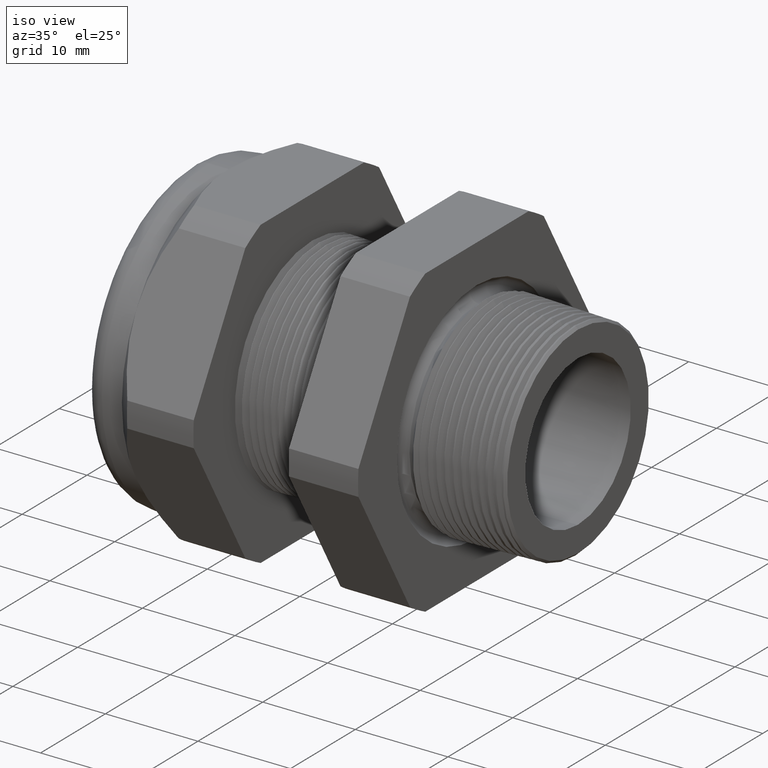
[diagram: clean part render]
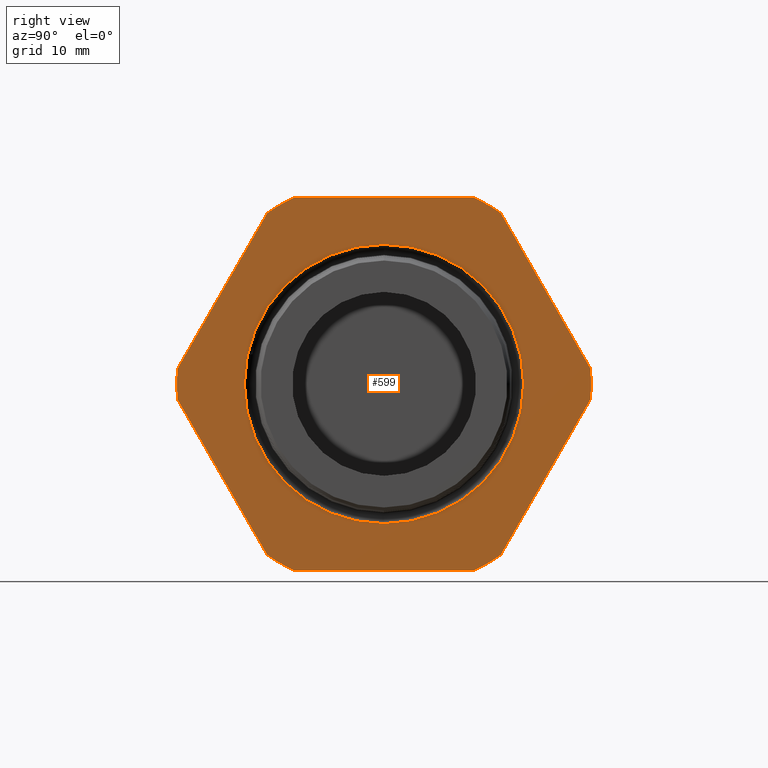
[diagram: tour spotlight — one face highlighted and labeled with its STEP entity id]
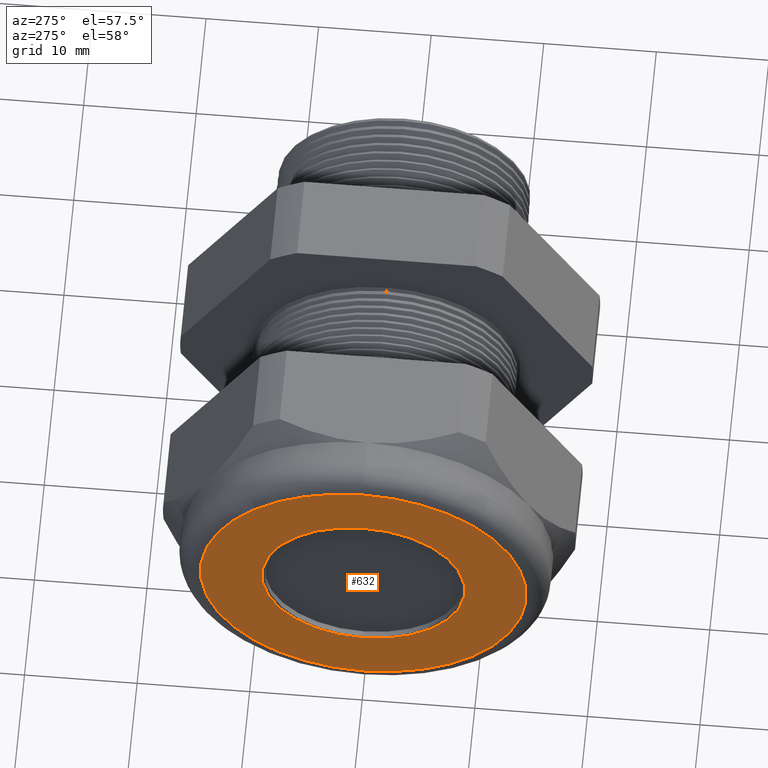
[diagram: tour spotlight — one face highlighted and labeled with its STEP entity id]
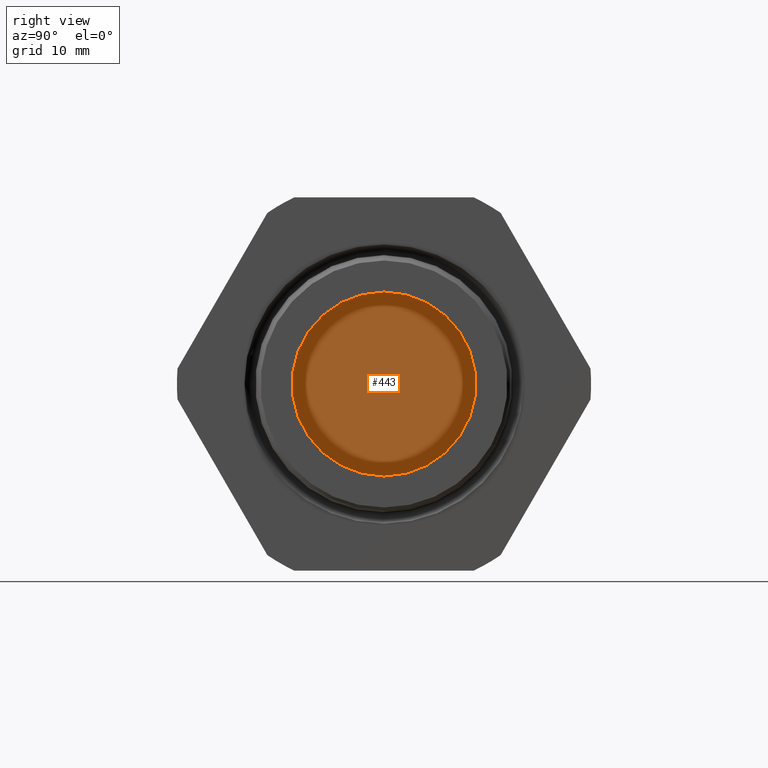
[diagram: tour spotlight — one face highlighted and labeled with its STEP entity id]
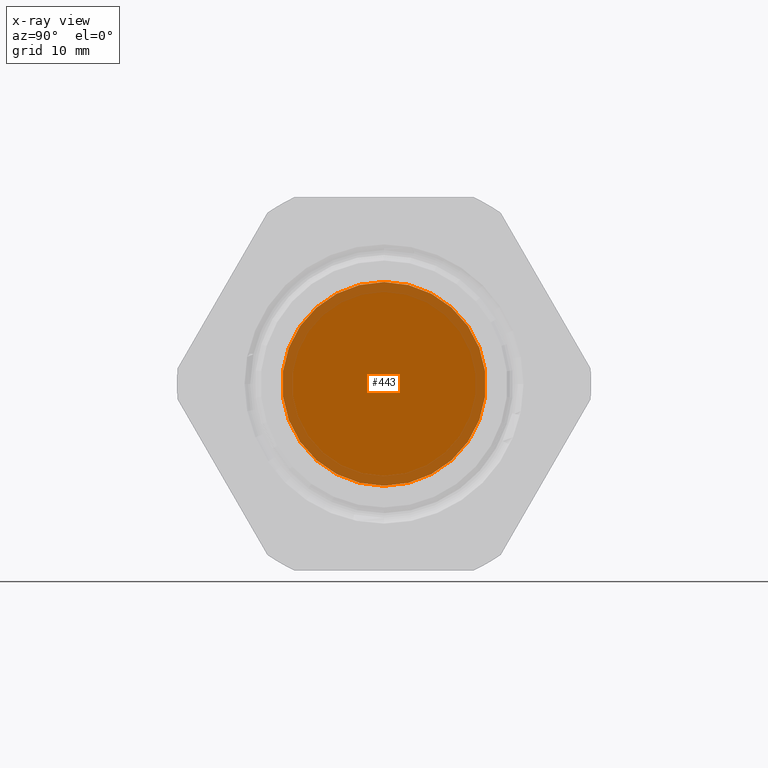
[diagram: x-ray of the same camera — body ghosted, this tour face saturated]
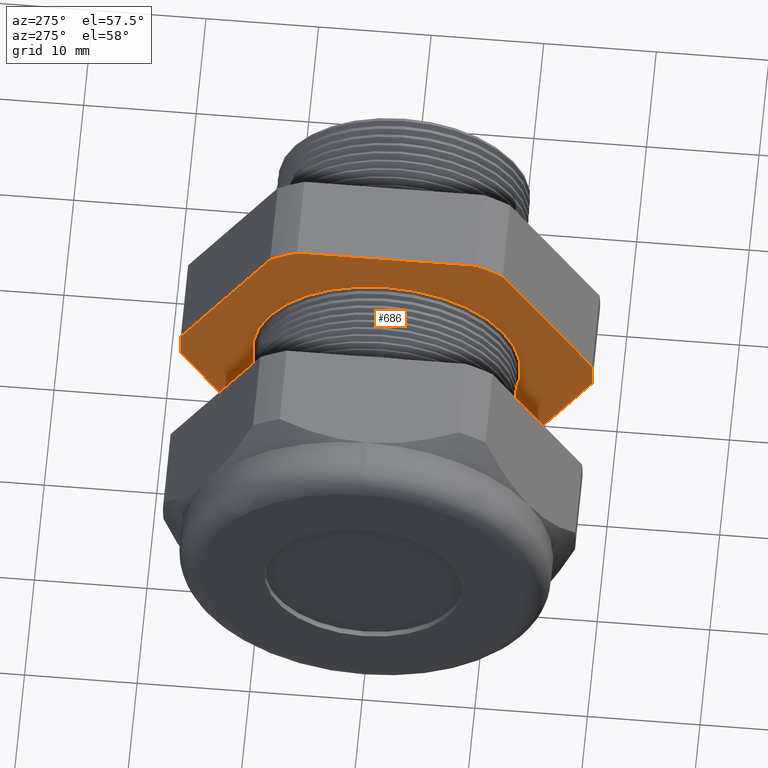
[diagram: tour spotlight — one face highlighted and labeled with its STEP entity id]
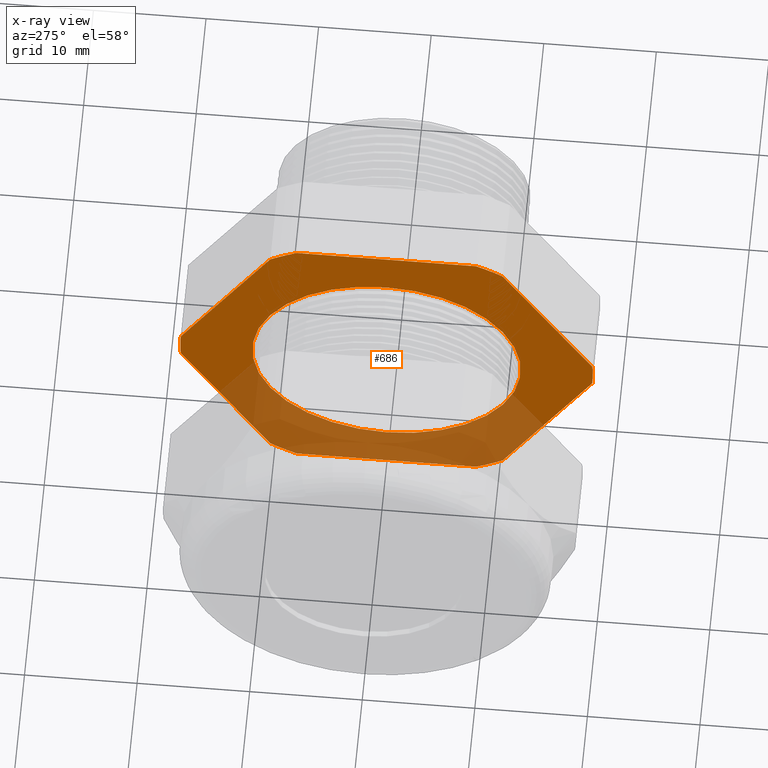
[diagram: x-ray of the same camera — body ghosted, this tour face saturated]
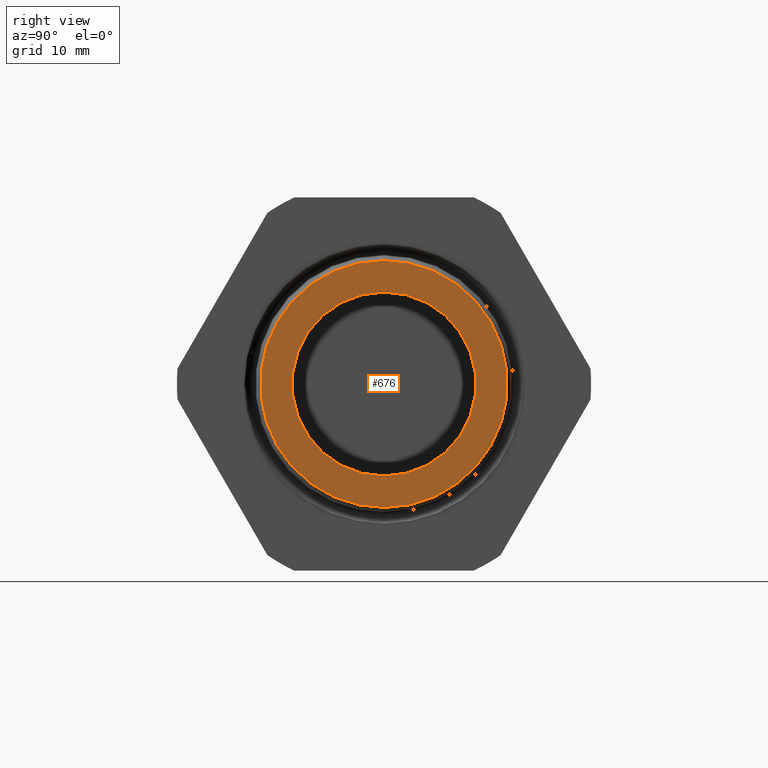
[diagram: tour spotlight — one face highlighted and labeled with its STEP entity id]
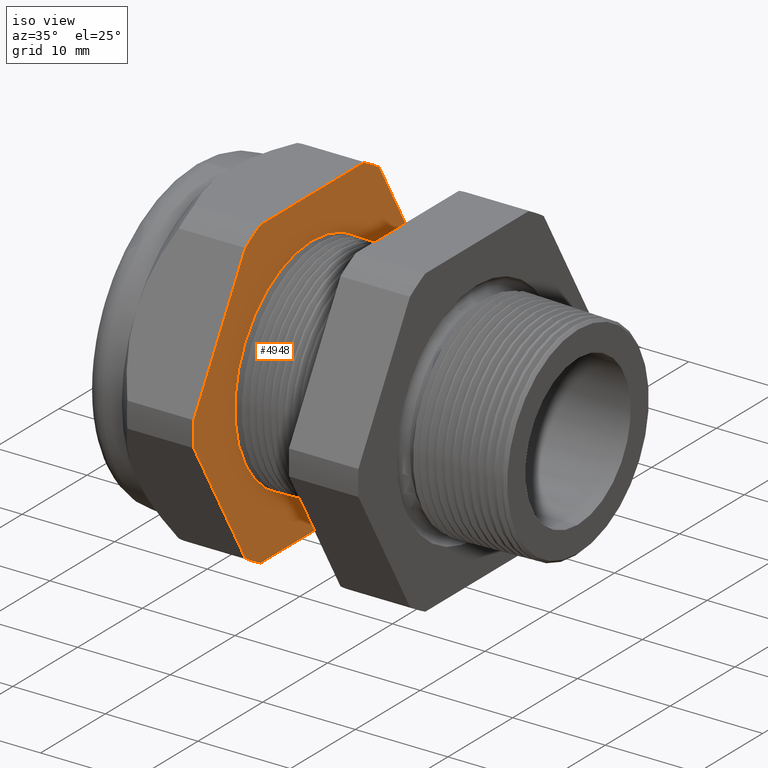
[diagram: tour spotlight — one face highlighted and labeled with its STEP entity id]
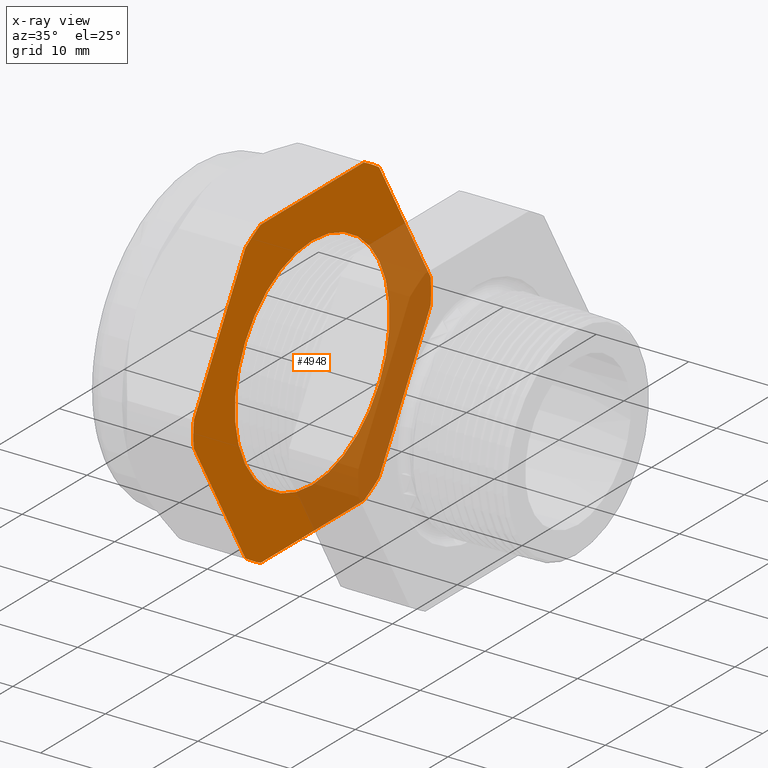
[diagram: x-ray of the same camera — body ghosted, this tour face saturated]
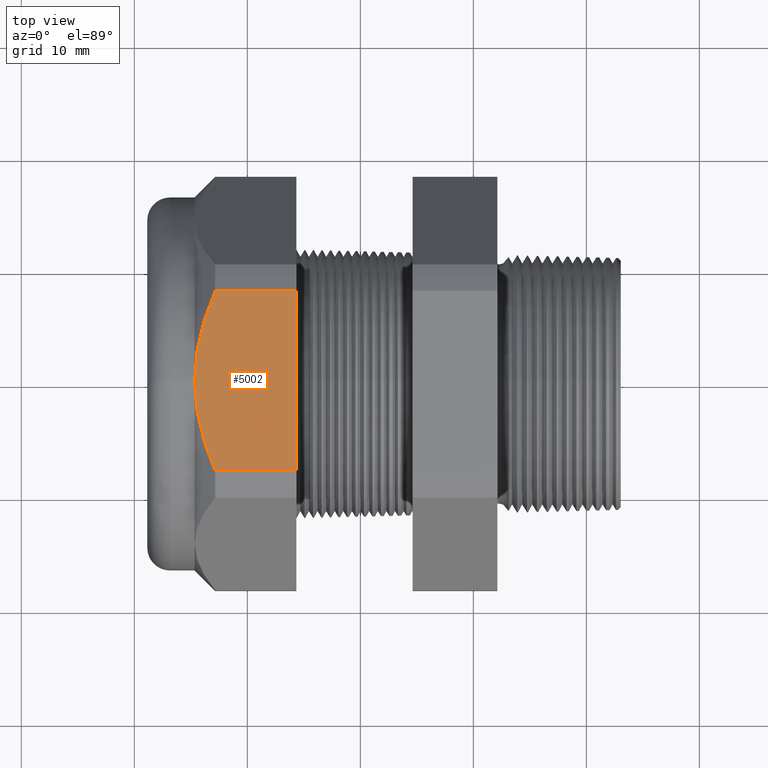
[diagram: tour spotlight — one face highlighted and labeled with its STEP entity id]
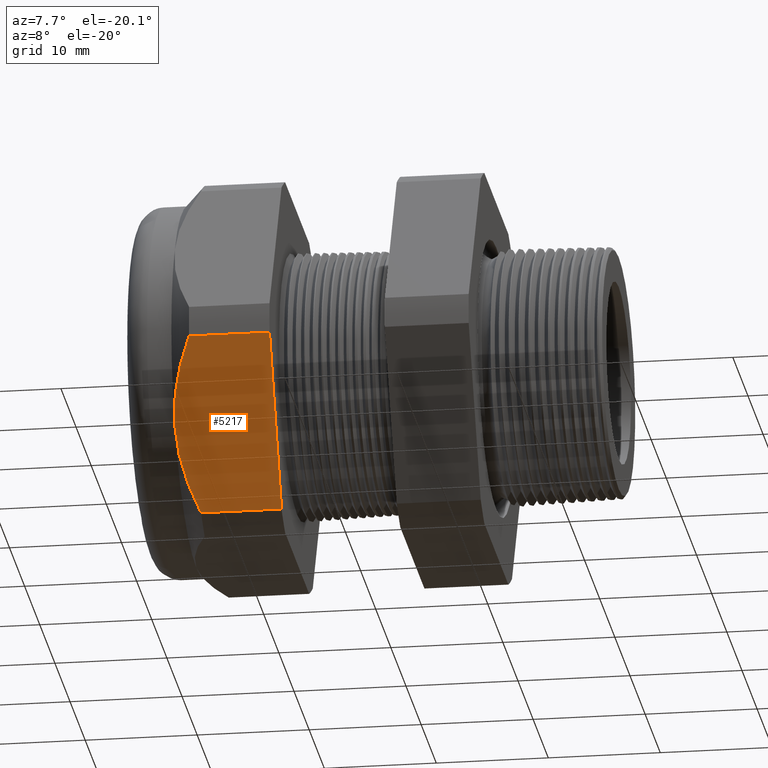
[diagram: tour spotlight — one face highlighted and labeled with its STEP entity id]
A machine part: a face-by-face anatomy tour. The part has 206 B-rep faces; the first image is the clean iso view, then the 8 largest visible faces are spotlighted one at a time (largest first), each with its STEP entity span.

Face 1 — right view, entity #599. In plain terms, the highlighted planar face has unit normal (1, 0, 0).
Definition (entity closure, byte-faithful):
#289 = VERTEX_POINT ( 'NONE', #2919 ) ;
#321 = EDGE_CURVE ( 'NONE', #289, #325, #2990, .T. ) ;
#325 = VERTEX_POINT ( 'NONE', #2980 ) ;
#517 = VERTEX_POINT ( 'NONE', #3322 ) ;
#558 = VERTEX_POINT ( 'NONE', #3441 ) ;
#565 = EDGE_CURVE ( 'NONE', #566, #558, #3473, .T. ) ;
#566 = VERTEX_POINT ( 'NONE', #3468 ) ;
#567 = ORIENTED_EDGE ( 'NONE', *, *, #565, .T. ) ;
#569 = ORIENTED_EDGE ( 'NONE', *, *, #579, .T. ) ;
#570 = ORIENTED_EDGE ( 'NONE', *, *, #597, .T. ) ;
#574 = VERTEX_POINT ( 'NONE', #3462 ) ;
#575 = EDGE_CURVE ( 'NONE', #590, #584, #3460, .T. ) ;
#576 = ORIENTED_EDGE ( 'NONE', *, *, #582, .T. ) ;
#577 = VERTEX_POINT ( 'NONE', #3455 ) ;
#578 = VERTEX_POINT ( 'NONE', #3454 ) ;
#579 = EDGE_CURVE ( 'NONE', #580, #574, #3453, .T. ) ;
#580 = VERTEX_POINT ( 'NONE', #3449 ) ;
#581 = ORIENTED_EDGE ( 'NONE', *, *, #587, .T. ) ;
#582 = EDGE_CURVE ( 'NONE', #584, #578, #3448, .T. ) ;
#583 = EDGE_CURVE ( 'NONE', #558, #590, #3444, .T. ) ;
#584 = VERTEX_POINT ( 'NONE', #3505 ) ;
#585 = ORIENTED_EDGE ( 'NONE', *, *, #601, .T. ) ;
#586 = ORIENTED_EDGE ( 'NONE', *, *, #575, .T. ) ;
#587 = EDGE_CURVE ( 'NONE', #578, #580, #3503, .T. ) ;
#588 = EDGE_CURVE ( 'NONE', #325, #289, #3498, .T. ) ;
#589 = VERTEX_POINT ( 'NONE', #3494 ) ;
#590 = VERTEX_POINT ( 'NONE', #3493 ) ;
#591 = ORIENTED_EDGE ( 'NONE', *, *, #596, .T. ) ;
#592 = ORIENTED_EDGE ( 'NONE', *, *, #321, .F. ) ;
#593 = EDGE_LOOP ( 'NONE', ( #612, #592 ) ) ;
#594 = ORIENTED_EDGE ( 'NONE', *, *, #583, .T. ) ;
#596 = EDGE_CURVE ( 'NONE', #589, #517, #3491, .T. ) ;
#597 = EDGE_CURVE ( 'NONE', #600, #589, #3492, .T. ) ;
#598 = ORIENTED_EDGE ( 'NONE', *, *, #608, .T. ) ;
#599 = ADVANCED_FACE ( 'NONE', ( #3483, #3482 ), #3481, .T. ) ;
#600 = VERTEX_POINT ( 'NONE', #3476 ) ;
#601 = EDGE_CURVE ( 'NONE', #607, #600, #3540, .T. ) ;
#602 = EDGE_LOOP ( 'NONE', ( #604, #567, #594, #586, #576, #581, #569, #598, #606, #585, #570, #591 ) ) ;
#604 = ORIENTED_EDGE ( 'NONE', *, *, #613, .T. ) ;
#605 = EDGE_CURVE ( 'NONE', #577, #607, #3531, .T. ) ;
#606 = ORIENTED_EDGE ( 'NONE', *, *, #605, .T. ) ;
#607 = VERTEX_POINT ( 'NONE', #3527 ) ;
#608 = EDGE_CURVE ( 'NONE', #574, #577, #3526, .T. ) ;
#612 = ORIENTED_EDGE ( 'NONE', *, *, #588, .F. ) ;
#613 = EDGE_CURVE ( 'NONE', #517, #566, #3515, .T. ) ;
#2919 = CARTESIAN_POINT ( 'NONE',  ( -0.3100000000000000000, 5.955489513090126900E-017, 0.4863026235185991000 ) ) ;
#2980 = CARTESIAN_POINT ( 'NONE',  ( -0.3100000000000000000, 0.0000000000000000000, -0.4863026235185991000 ) ) ;
#2985 = DIRECTION ( 'NONE',  ( 0.0000000000000000000, 0.0000000000000000000, -1.000000000000000000 ) ) ;
#2986 = DIRECTION ( 'NONE',  ( 1.000000000000000000, 0.0000000000000000000, 0.0000000000000000000 ) ) ;
#2988 = CARTESIAN_POINT ( 'NONE',  ( -0.3100000000000000000, 0.0000000000000000000, 0.0000000000000000000 ) ) ;
#2989 = AXIS2_PLACEMENT_3D ( 'NONE', #2988, #2986, #2985 ) ;
#2990 = CIRCLE ( 'NONE', #2989, 0.4863026235185991000 ) ;
#3322 = CARTESIAN_POINT ( 'NONE',  ( -0.3100000000000000000, 0.4063420493440886800, -0.5961949252843790100 ) ) ;
#3441 = CARTESIAN_POINT ( 'NONE',  ( -0.3100000000000000000, 0.7194909755756817600, 0.05380507471562173000 ) ) ;
#3442 = VECTOR ( 'NONE', #3506, 39.37007874015748100 ) ;
#3443 = CARTESIAN_POINT ( 'NONE',  ( -0.3100000000000000000, 0.8879165124598854500, -0.2379165124598849300 ) ) ;
#3444 = LINE ( 'NONE', #3443, #3442 ) ;
#3445 = DIRECTION ( 'NONE',  ( 0.0000000000000000000, -1.000000000000000000, 0.0000000000000000000 ) ) ;
#3446 = VECTOR ( 'NONE', #3445, 39.37007874015748100 ) ;
#3447 = CARTESIAN_POINT ( 'NONE',  ( -0.3100000000000000000, 1.300000000000000000, 0.6499999999999999100 ) ) ;
#3448 = LINE ( 'NONE', #3447, #3446 ) ;
#3449 = CARTESIAN_POINT ( 'NONE',  ( -0.3100000000000000000, -0.4063420493440885700, 0.5961949252843791200 ) ) ;
#3450 = DIRECTION ( 'NONE',  ( 0.0000000000000000000, -0.4999999999999995600, -0.8660254037844388200 ) ) ;
#3451 = VECTOR ( 'NONE', #3450, 39.37007874015748900 ) ;
#3452 = CARTESIAN_POINT ( 'NONE',  ( -0.3100000000000000000, -0.2379165124598858200, 0.8879165124598844500 ) ) ;
#3453 = LINE ( 'NONE', #3452, #3451 ) ;
#3454 = CARTESIAN_POINT ( 'NONE',  ( -0.3100000000000000000, -0.3131489262315937400, 0.6500000000000000200 ) ) ;
#3455 = CARTESIAN_POINT ( 'NONE',  ( -0.3100000000000000000, -0.7194909755756819800, -0.05380507471562082100 ) ) ;
#3456 = DIRECTION ( 'NONE',  ( 0.0000000000000000000, 0.0000000000000000000, -1.000000000000000000 ) ) ;
#3457 = DIRECTION ( 'NONE',  ( 1.000000000000000000, 0.0000000000000000000, 0.0000000000000000000 ) ) ;
#3458 = CARTESIAN_POINT ( 'NONE',  ( -0.3100000000000000000, 0.0000000000000000000, 0.0000000000000000000 ) ) ;
#3459 = AXIS2_PLACEMENT_3D ( 'NONE', #3458, #3457, #3456 ) ;
#3460 = CIRCLE ( 'NONE', #3459, 0.7215000000000000300 ) ;
#3462 = CARTESIAN_POINT ( 'NONE',  ( -0.3100000000000000000, -0.7194909755756819800, 0.05380507471562025900 ) ) ;
#3468 = CARTESIAN_POINT ( 'NONE',  ( -0.3100000000000000000, 0.7194909755756817600, -0.05380507471562094600 ) ) ;
#3469 = DIRECTION ( 'NONE',  ( 0.0000000000000000000, 0.0000000000000000000, -1.000000000000000000 ) ) ;
#3470 = DIRECTION ( 'NONE',  ( 1.000000000000000000, 0.0000000000000000000, 0.0000000000000000000 ) ) ;
#3471 = CARTESIAN_POINT ( 'NONE',  ( -0.3100000000000000000, 0.0000000000000000000, 0.0000000000000000000 ) ) ;
#3472 = AXIS2_PLACEMENT_3D ( 'NONE', #3471, #3470, #3469 ) ;
#3473 = CIRCLE ( 'NONE', #3472, 0.7214999999999999200 ) ;
#3476 = CARTESIAN_POINT ( 'NONE',  ( -0.3100000000000000000, -0.3131489262315934100, -0.6500000000000001300 ) ) ;
#3477 = DIRECTION ( 'NONE',  ( 0.0000000000000000000, 0.0000000000000000000, -1.000000000000000000 ) ) ;
#3478 = DIRECTION ( 'NONE',  ( 1.000000000000000000, 0.0000000000000000000, 0.0000000000000000000 ) ) ;
#3479 = CARTESIAN_POINT ( 'NONE',  ( -0.3100000000000000000, 1.300000000000000000, 0.0000000000000000000 ) ) ;
#3480 = AXIS2_PLACEMENT_3D ( 'NONE', #3479, #3478, #3477 ) ;
#3481 = PLANE ( 'NONE',  #3480 ) ;
#3482 = FACE_OUTER_BOUND ( 'NONE', #602, .T. ) ;
#3483 = FACE_BOUND ( 'NONE', #593, .T. ) ;
#3484 = DIRECTION ( 'NONE',  ( 0.0000000000000000000, 1.000000000000000000, 0.0000000000000000000 ) ) ;
#3485 = VECTOR ( 'NONE', #3484, 39.37007874015748100 ) ;
#3486 = CARTESIAN_POINT ( 'NONE',  ( -0.3100000000000000000, 1.300000000000000000, -0.6500000000000001300 ) ) ;
#3487 = DIRECTION ( 'NONE',  ( 0.0000000000000000000, 0.0000000000000000000, -1.000000000000000000 ) ) ;
#3488 = DIRECTION ( 'NONE',  ( 1.000000000000000000, 0.0000000000000000000, 0.0000000000000000000 ) ) ;
#3489 = CARTESIAN_POINT ( 'NONE',  ( -0.3100000000000000000, 0.0000000000000000000, 0.0000000000000000000 ) ) ;
#3490 = AXIS2_PLACEMENT_3D ( 'NONE', #3489, #3488, #3487 ) ;
#3491 = CIRCLE ( 'NONE', #3490, 0.7215000000000000300 ) ;
#3492 = LINE ( 'NONE', #3486, #3485 ) ;
#3493 = CARTESIAN_POINT ( 'NONE',  ( -0.3100000000000000000, 0.4063420493440890700, 0.5961949252843787800 ) ) ;
#3494 = CARTESIAN_POINT ( 'NONE',  ( -0.3100000000000000000, 0.3131489262315934100, -0.6500000000000001300 ) ) ;
#3495 = DIRECTION ( 'NONE',  ( 0.0000000000000000000, 0.0000000000000000000, -1.000000000000000000 ) ) ;
#3496 = DIRECTION ( 'NONE',  ( 1.000000000000000000, 0.0000000000000000000, 0.0000000000000000000 ) ) ;
#3497 = AXIS2_PLACEMENT_3D ( 'NONE', #3504, #3496, #3495 ) ;
#3498 = CIRCLE ( 'NONE', #3497, 0.4863026235185991000 ) ;
#3499 = DIRECTION ( 'NONE',  ( 0.0000000000000000000, 0.0000000000000000000, -1.000000000000000000 ) ) ;
#3500 = DIRECTION ( 'NONE',  ( 1.000000000000000000, 0.0000000000000000000, 0.0000000000000000000 ) ) ;
#3501 = CARTESIAN_POINT ( 'NONE',  ( -0.3100000000000000000, 0.0000000000000000000, 0.0000000000000000000 ) ) ;
#3502 = AXIS2_PLACEMENT_3D ( 'NONE', #3501, #3500, #3499 ) ;
#3503 = CIRCLE ( 'NONE', #3502, 0.7215000000000000300 ) ;
#3504 = CARTESIAN_POINT ( 'NONE',  ( -0.3100000000000000000, 0.0000000000000000000, 0.0000000000000000000 ) ) ;
#3505 = CARTESIAN_POINT ( 'NONE',  ( -0.3100000000000000000, 0.3131489262315937900, 0.6499999999999999100 ) ) ;
#3506 = DIRECTION ( 'NONE',  ( 0.0000000000000000000, -0.4999999999999998900, 0.8660254037844386000 ) ) ;
#3512 = DIRECTION ( 'NONE',  ( 0.0000000000000000000, 0.4999999999999996100, 0.8660254037844388200 ) ) ;
#3513 = VECTOR ( 'NONE', #3512, 39.37007874015748900 ) ;
#3514 = CARTESIAN_POINT ( 'NONE',  ( -0.3100000000000000000, 0.8879165124598849000, 0.2379165124598850200 ) ) ;
#3515 = LINE ( 'NONE', #3514, #3513 ) ;
#3522 = DIRECTION ( 'NONE',  ( 0.0000000000000000000, 0.0000000000000000000, -1.000000000000000000 ) ) ;
#3523 = DIRECTION ( 'NONE',  ( 1.000000000000000000, 0.0000000000000000000, 0.0000000000000000000 ) ) ;
#3524 = CARTESIAN_POINT ( 'NONE',  ( -0.3100000000000000000, 0.0000000000000000000, 0.0000000000000000000 ) ) ;
#3525 = AXIS2_PLACEMENT_3D ( 'NONE', #3524, #3523, #3522 ) ;
#3526 = CIRCLE ( 'NONE', #3525, 0.7215000000000000300 ) ;
#3527 = CARTESIAN_POINT ( 'NONE',  ( -0.3100000000000000000, -0.4063420493440881300, -0.5961949252843793400 ) ) ;
#3528 = DIRECTION ( 'NONE',  ( 0.0000000000000000000, 0.5000000000000001100, -0.8660254037844386000 ) ) ;
#3529 = VECTOR ( 'NONE', #3528, 39.37007874015748100 ) ;
#3530 = CARTESIAN_POINT ( 'NONE',  ( -0.3100000000000000000, -0.2379165124598852700, -0.8879165124598854500 ) ) ;
#3531 = LINE ( 'NONE', #3530, #3529 ) ;
#3536 = DIRECTION ( 'NONE',  ( 0.0000000000000000000, 0.0000000000000000000, -1.000000000000000000 ) ) ;
#3537 = DIRECTION ( 'NONE',  ( 1.000000000000000000, 0.0000000000000000000, 0.0000000000000000000 ) ) ;
#3538 = CARTESIAN_POINT ( 'NONE',  ( -0.3100000000000000000, 0.0000000000000000000, 0.0000000000000000000 ) ) ;
#3539 = AXIS2_PLACEMENT_3D ( 'NONE', #3538, #3537, #3536 ) ;
#3540 = CIRCLE ( 'NONE', #3539, 0.7215000000000000300 ) ;

Face 2 — auxiliary view, entity #632. In plain terms, the highlighted planar face has unit normal (-1, 0, 0).
Definition (entity closure, byte-faithful):
#620 = EDGE_LOOP ( 'NONE', ( #654, #655 ) ) ;
#627 = EDGE_LOOP ( 'NONE', ( #628, #629 ) ) ;
#628 = ORIENTED_EDGE ( 'NONE', *, *, #1894, .T. ) ;
#629 = ORIENTED_EDGE ( 'NONE', *, *, #631, .T. ) ;
#631 = EDGE_CURVE ( 'NONE', #1892, #1887, #3548, .T. ) ;
#632 = ADVANCED_FACE ( 'NONE', ( #3543, #3542 ), #3603, .T. ) ;
#653 = EDGE_CURVE ( 'NONE', #1919, #1918, #3624, .T. ) ;
#654 = ORIENTED_EDGE ( 'NONE', *, *, #653, .T. ) ;
#655 = ORIENTED_EDGE ( 'NONE', *, *, #1915, .T. ) ;
#1887 = VERTEX_POINT ( 'NONE', #3898 ) ;
#1892 = VERTEX_POINT ( 'NONE', #3959 ) ;
#1894 = EDGE_CURVE ( 'NONE', #1887, #1892, #3952, .T. ) ;
#1915 = EDGE_CURVE ( 'NONE', #1918, #1919, #3971, .T. ) ;
#1918 = VERTEX_POINT ( 'NONE', #3966 ) ;
#1919 = VERTEX_POINT ( 'NONE', #3965 ) ;
#3542 = FACE_BOUND ( 'NONE', #620, .T. ) ;
#3543 = FACE_OUTER_BOUND ( 'NONE', #627, .T. ) ;
#3544 = DIRECTION ( 'NONE',  ( 0.0000000000000000000, 0.0000000000000000000, 1.000000000000000000 ) ) ;
#3545 = DIRECTION ( 'NONE',  ( -1.000000000000000000, 0.0000000000000000000, 0.0000000000000000000 ) ) ;
#3546 = CARTESIAN_POINT ( 'NONE',  ( -1.529999999999999800, 0.0000000000000000000, 0.0000000000000000000 ) ) ;
#3547 = AXIS2_PLACEMENT_3D ( 'NONE', #3546, #3545, #3544 ) ;
#3548 = CIRCLE ( 'NONE', #3547, 0.5699999999999999500 ) ;
#3599 = DIRECTION ( 'NONE',  ( 0.0000000000000000000, 0.0000000000000000000, 1.000000000000000000 ) ) ;
#3600 = DIRECTION ( 'NONE',  ( -1.000000000000000000, 0.0000000000000000000, 0.0000000000000000000 ) ) ;
#3601 = CARTESIAN_POINT ( 'NONE',  ( -1.529999999999999800, 0.6499999999999999100, 0.0000000000000000000 ) ) ;
#3602 = AXIS2_PLACEMENT_3D ( 'NONE', #3601, #3600, #3599 ) ;
#3603 = PLANE ( 'NONE',  #3602 ) ;
#3621 = DIRECTION ( 'NONE',  ( 0.0000000000000000000, 0.0000000000000000000, -1.000000000000000000 ) ) ;
#3622 = DIRECTION ( 'NONE',  ( 1.000000000000000000, 0.0000000000000000000, 0.0000000000000000000 ) ) ;
#3623 = AXIS2_PLACEMENT_3D ( 'NONE', #3629, #3622, #3621 ) ;
#3624 = CIRCLE ( 'NONE', #3623, 0.3549999999999999800 ) ;
#3629 = CARTESIAN_POINT ( 'NONE',  ( -1.529999999999999800, 0.0000000000000000000, 0.0000000000000000000 ) ) ;
#3898 = CARTESIAN_POINT ( 'NONE',  ( -1.529999999999999800, 0.0000000000000000000, 0.5699999999999999500 ) ) ;
#3949 = DIRECTION ( 'NONE',  ( 0.0000000000000000000, 0.0000000000000000000, 1.000000000000000000 ) ) ;
#3950 = DIRECTION ( 'NONE',  ( -1.000000000000000000, 0.0000000000000000000, 0.0000000000000000000 ) ) ;
#3951 = AXIS2_PLACEMENT_3D ( 'NONE', #3958, #3950, #3949 ) ;
#3952 = CIRCLE ( 'NONE', #3951, 0.5699999999999999500 ) ;
#3958 = CARTESIAN_POINT ( 'NONE',  ( -1.529999999999999800, 0.0000000000000000000, 0.0000000000000000000 ) ) ;
#3959 = CARTESIAN_POINT ( 'NONE',  ( -1.529999999999999800, 7.470345474798854000E-017, -0.5699999999999999500 ) ) ;
#3965 = CARTESIAN_POINT ( 'NONE',  ( -1.529999999999999800, 0.0000000000000000000, -0.3549999999999999800 ) ) ;
#3966 = CARTESIAN_POINT ( 'NONE',  ( -1.529999999999999800, 4.347496136973103500E-017, 0.3549999999999999800 ) ) ;
#3968 = DIRECTION ( 'NONE',  ( 0.0000000000000000000, 0.0000000000000000000, -1.000000000000000000 ) ) ;
#3969 = DIRECTION ( 'NONE',  ( 1.000000000000000000, 0.0000000000000000000, 0.0000000000000000000 ) ) ;
#3970 = AXIS2_PLACEMENT_3D ( 'NONE', #3976, #3969, #3968 ) ;
#3971 = CIRCLE ( 'NONE', #3970, 0.3549999999999999800 ) ;
#3976 = CARTESIAN_POINT ( 'NONE',  ( -1.529999999999999800, 0.0000000000000000000, 0.0000000000000000000 ) ) ;

Face 3 — right view, entity #443. An x-ray twin of the same camera follows (body ghosted, this face saturated) — the face is partly hidden behind the body. In plain terms, the highlighted planar face has unit normal (-1, 0, 0).
Definition (entity closure, byte-faithful):
#402 = EDGE_LOOP ( 'NONE', ( #409, #410 ) ) ;
#409 = ORIENTED_EDGE ( 'NONE', *, *, #429, .F. ) ;
#410 = ORIENTED_EDGE ( 'NONE', *, *, #439, .F. ) ;
#429 = EDGE_CURVE ( 'NONE', #634, #635, #3178, .T. ) ;
#439 = EDGE_CURVE ( 'NONE', #635, #634, #3156, .T. ) ;
#443 = ADVANCED_FACE ( 'NONE', ( #3212 ), #3211, .F. ) ;
#634 = VERTEX_POINT ( 'NONE', #3593 ) ;
#635 = VERTEX_POINT ( 'NONE', #3592 ) ;
#3156 = CIRCLE ( 'NONE', #3222, 0.3549999999999999800 ) ;
#3174 = DIRECTION ( 'NONE',  ( 0.0000000000000000000, 0.0000000000000000000, 1.000000000000000000 ) ) ;
#3175 = DIRECTION ( 'NONE',  ( -1.000000000000000000, 0.0000000000000000000, 0.0000000000000000000 ) ) ;
#3176 = CARTESIAN_POINT ( 'NONE',  ( -1.179999999999999900, 0.0000000000000000000, 0.0000000000000000000 ) ) ;
#3177 = AXIS2_PLACEMENT_3D ( 'NONE', #3176, #3175, #3174 ) ;
#3178 = CIRCLE ( 'NONE', #3177, 0.3549999999999999800 ) ;
#3207 = DIRECTION ( 'NONE',  ( 0.0000000000000000000, 0.0000000000000000000, 1.000000000000000000 ) ) ;
#3208 = DIRECTION ( 'NONE',  ( -1.000000000000000000, 0.0000000000000000000, 0.0000000000000000000 ) ) ;
#3209 = CARTESIAN_POINT ( 'NONE',  ( -1.179999999999999900, 0.0000000000000000000, 0.0000000000000000000 ) ) ;
#3210 = AXIS2_PLACEMENT_3D ( 'NONE', #3209, #3208, #3207 ) ;
#3211 = PLANE ( 'NONE',  #3210 ) ;
#3212 = FACE_OUTER_BOUND ( 'NONE', #402, .T. ) ;
#3219 = DIRECTION ( 'NONE',  ( 0.0000000000000000000, 0.0000000000000000000, 1.000000000000000000 ) ) ;
#3220 = DIRECTION ( 'NONE',  ( -1.000000000000000000, 0.0000000000000000000, 0.0000000000000000000 ) ) ;
#3221 = CARTESIAN_POINT ( 'NONE',  ( -1.179999999999999900, 0.0000000000000000000, 0.0000000000000000000 ) ) ;
#3222 = AXIS2_PLACEMENT_3D ( 'NONE', #3221, #3220, #3219 ) ;
#3592 = CARTESIAN_POINT ( 'NONE',  ( -1.179999999999999900, 4.347496136973103500E-017, -0.3549999999999999800 ) ) ;
#3593 = CARTESIAN_POINT ( 'NONE',  ( -1.179999999999999900, 0.0000000000000000000, 0.3549999999999999800 ) ) ;

Face 4 — auxiliary view, entity #686. An x-ray twin of the same camera follows (body ghosted, this face saturated) — the face is partly hidden behind the body. In plain terms, the highlighted planar face has unit normal (-1, 0, 0).
Definition (entity closure, byte-faithful):
#232 = VERTEX_POINT ( 'NONE', #2822 ) ;
#246 = VERTEX_POINT ( 'NONE', #2806 ) ;
#652 = EDGE_LOOP ( 'NONE', ( #684, #683 ) ) ;
#666 = ORIENTED_EDGE ( 'NONE', *, *, #667, .T. ) ;
#667 = EDGE_CURVE ( 'NONE', #672, #4922, #3667, .T. ) ;
#669 = EDGE_CURVE ( 'NONE', #682, #672, #3663, .T. ) ;
#672 = VERTEX_POINT ( 'NONE', #3658 ) ;
#675 = ORIENTED_EDGE ( 'NONE', *, *, #669, .T. ) ;
#678 = VERTEX_POINT ( 'NONE', #3640 ) ;
#679 = EDGE_LOOP ( 'NONE', ( #681, #675, #666, #4923, #4926, #4970, #691, #693, #4939, #4946, #4934, #4931 ) ) ;
#680 = EDGE_CURVE ( 'NONE', #678, #682, #3639, .T. ) ;
#681 = ORIENTED_EDGE ( 'NONE', *, *, #680, .T. ) ;
#682 = VERTEX_POINT ( 'NONE', #3699 ) ;
#683 = ORIENTED_EDGE ( 'NONE', *, *, #5398, .F. ) ;
#684 = ORIENTED_EDGE ( 'NONE', *, *, #685, .F. ) ;
#685 = EDGE_CURVE ( 'NONE', #232, #246, #3697, .T. ) ;
#686 = ADVANCED_FACE ( 'NONE', ( #3698, #3692 ), #3691, .T. ) ;
#687 = EDGE_CURVE ( 'NONE', #688, #4947, #3686, .T. ) ;
#688 = VERTEX_POINT ( 'NONE', #3681 ) ;
#689 = EDGE_CURVE ( 'NONE', #692, #688, #3680, .T. ) ;
#691 = ORIENTED_EDGE ( 'NONE', *, *, #689, .T. ) ;
#692 = VERTEX_POINT ( 'NONE', #3676 ) ;
#693 = ORIENTED_EDGE ( 'NONE', *, *, #687, .T. ) ;
#1409 = DIRECTION ( 'NONE',  ( 0.0000000000000000000, 0.0000000000000000000, 1.000000000000000000 ) ) ;
#1410 = DIRECTION ( 'NONE',  ( -1.000000000000000000, 0.0000000000000000000, 0.0000000000000000000 ) ) ;
#1411 = CARTESIAN_POINT ( 'NONE',  ( -0.6052755905511809600, 0.0000000000000000000, 0.0000000000000000000 ) ) ;
#1412 = AXIS2_PLACEMENT_3D ( 'NONE', #1411, #1410, #1409 ) ;
#1413 = CIRCLE ( 'NONE', #1412, 0.4696061802346682700 ) ;
#2806 = CARTESIAN_POINT ( 'NONE',  ( -0.6052755905511809600, 5.751017054842014700E-017, -0.4696061802346682100 ) ) ;
#2822 = CARTESIAN_POINT ( 'NONE',  ( -0.6052755905511809600, 0.0000000000000000000, 0.4696061802346682100 ) ) ;
#3639 = LINE ( 'NONE', #3702, #3701 ) ;
#3640 = CARTESIAN_POINT ( 'NONE',  ( -0.6052755905511810800, 0.4063420493440890700, 0.5961949252843787800 ) ) ;
#3658 = CARTESIAN_POINT ( 'NONE',  ( -0.6052755905511810800, 0.7194909755756818700, -0.05380507471562089700 ) ) ;
#3659 = DIRECTION ( 'NONE',  ( 0.0000000000000000000, 0.0000000000000000000, 1.000000000000000000 ) ) ;
#3660 = DIRECTION ( 'NONE',  ( -1.000000000000000000, 0.0000000000000000000, 0.0000000000000000000 ) ) ;
#3661 = CARTESIAN_POINT ( 'NONE',  ( -0.6052755905511810800, 0.0000000000000000000, 0.0000000000000000000 ) ) ;
#3662 = AXIS2_PLACEMENT_3D ( 'NONE', #3661, #3660, #3659 ) ;
#3663 = CIRCLE ( 'NONE', #3662, 0.7214999999999999200 ) ;
#3664 = DIRECTION ( 'NONE',  ( 0.0000000000000000000, -0.4999999999999996100, -0.8660254037844388200 ) ) ;
#3665 = VECTOR ( 'NONE', #3664, 39.37007874015748900 ) ;
#3666 = CARTESIAN_POINT ( 'NONE',  ( -0.6052755905511809600, 0.8879165124598849000, 0.2379165124598850200 ) ) ;
#3667 = LINE ( 'NONE', #3666, #3665 ) ;
#3676 = CARTESIAN_POINT ( 'NONE',  ( -0.6052755905511810800, -0.4063420493440881300, -0.5961949252843793400 ) ) ;
#3677 = DIRECTION ( 'NONE',  ( 0.0000000000000000000, -0.5000000000000001100, 0.8660254037844386000 ) ) ;
#3678 = VECTOR ( 'NONE', #3677, 39.37007874015748100 ) ;
#3679 = CARTESIAN_POINT ( 'NONE',  ( -0.6052755905511809600, -0.2379165124598852700, -0.8879165124598854500 ) ) ;
#3680 = LINE ( 'NONE', #3679, #3678 ) ;
#3681 = CARTESIAN_POINT ( 'NONE',  ( -0.6052755905511810800, -0.7194909755756819800, -0.05380507471562082100 ) ) ;
#3682 = DIRECTION ( 'NONE',  ( 0.0000000000000000000, 0.0000000000000000000, 1.000000000000000000 ) ) ;
#3683 = DIRECTION ( 'NONE',  ( -1.000000000000000000, 0.0000000000000000000, 0.0000000000000000000 ) ) ;
#3684 = CARTESIAN_POINT ( 'NONE',  ( -0.6052755905511810800, 0.0000000000000000000, 0.0000000000000000000 ) ) ;
#3685 = AXIS2_PLACEMENT_3D ( 'NONE', #3684, #3683, #3682 ) ;
#3686 = CIRCLE ( 'NONE', #3685, 0.7215000000000000300 ) ;
#3687 = DIRECTION ( 'NONE',  ( 0.0000000000000000000, 0.0000000000000000000, 1.000000000000000000 ) ) ;
#3688 = DIRECTION ( 'NONE',  ( -1.000000000000000000, 0.0000000000000000000, 0.0000000000000000000 ) ) ;
#3689 = CARTESIAN_POINT ( 'NONE',  ( -0.6052755905511809600, 1.300000000000000000, 0.0000000000000000000 ) ) ;
#3690 = AXIS2_PLACEMENT_3D ( 'NONE', #3689, #3688, #3687 ) ;
#3691 = PLANE ( 'NONE',  #3690 ) ;
#3692 = FACE_OUTER_BOUND ( 'NONE', #679, .T. ) ;
#3693 = DIRECTION ( 'NONE',  ( 0.0000000000000000000, 0.0000000000000000000, 1.000000000000000000 ) ) ;
#3694 = DIRECTION ( 'NONE',  ( -1.000000000000000000, 0.0000000000000000000, 0.0000000000000000000 ) ) ;
#3695 = CARTESIAN_POINT ( 'NONE',  ( -0.6052755905511809600, 0.0000000000000000000, 0.0000000000000000000 ) ) ;
#3696 = AXIS2_PLACEMENT_3D ( 'NONE', #3695, #3694, #3693 ) ;
#3697 = CIRCLE ( 'NONE', #3696, 0.4696061802346682700 ) ;
#3698 = FACE_BOUND ( 'NONE', #652, .T. ) ;
#3699 = CARTESIAN_POINT ( 'NONE',  ( -0.6052755905511810800, 0.7194909755756817600, 0.05380507471562173000 ) ) ;
#3700 = DIRECTION ( 'NONE',  ( 0.0000000000000000000, 0.4999999999999998900, -0.8660254037844386000 ) ) ;
#3701 = VECTOR ( 'NONE', #3700, 39.37007874015748100 ) ;
#3702 = CARTESIAN_POINT ( 'NONE',  ( -0.6052755905511809600, 0.8879165124598854500, -0.2379165124598849300 ) ) ;
#4697 = CIRCLE ( 'NONE', #4758, 0.7215000000000000300 ) ;
#4698 = CARTESIAN_POINT ( 'NONE',  ( -0.6052755905511810800, 0.3131489262315934100, -0.6500000000000001300 ) ) ;
#4699 = DIRECTION ( 'NONE',  ( 0.0000000000000000000, -1.000000000000000000, 0.0000000000000000000 ) ) ;
#4700 = VECTOR ( 'NONE', #4699, 39.37007874015748100 ) ;
#4701 = CARTESIAN_POINT ( 'NONE',  ( -0.6052755905511809600, 1.300000000000000000, -0.6500000000000001300 ) ) ;
#4702 = LINE ( 'NONE', #4701, #4700 ) ;
#4703 = CARTESIAN_POINT ( 'NONE',  ( -0.6052755905511809600, 0.4063420493440886800, -0.5961949252843791200 ) ) ;
#4704 = CARTESIAN_POINT ( 'NONE',  ( -0.6052755905511810800, -0.3131489262315934100, -0.6500000000000001300 ) ) ;
#4726 = DIRECTION ( 'NONE',  ( 0.0000000000000000000, 0.0000000000000000000, 1.000000000000000000 ) ) ;
#4727 = DIRECTION ( 'NONE',  ( -1.000000000000000000, 0.0000000000000000000, 0.0000000000000000000 ) ) ;
#4728 = CARTESIAN_POINT ( 'NONE',  ( -0.6052755905511810800, 0.0000000000000000000, 0.0000000000000000000 ) ) ;
#4729 = AXIS2_PLACEMENT_3D ( 'NONE', #4728, #4727, #4726 ) ;
#4730 = CIRCLE ( 'NONE', #4729, 0.7215000000000000300 ) ;
#4731 = DIRECTION ( 'NONE',  ( 0.0000000000000000000, 0.4999999999999995600, 0.8660254037844388200 ) ) ;
#4732 = VECTOR ( 'NONE', #4731, 39.37007874015748900 ) ;
#4733 = CARTESIAN_POINT ( 'NONE',  ( -0.6052755905511809600, -0.2379165124598858200, 0.8879165124598844500 ) ) ;
#4734 = LINE ( 'NONE', #4733, #4732 ) ;
#4735 = CARTESIAN_POINT ( 'NONE',  ( -0.6052755905511810800, -0.4063420493440885700, 0.5961949252843791200 ) ) ;
#4736 = DIRECTION ( 'NONE',  ( 0.0000000000000000000, 1.000000000000000000, 0.0000000000000000000 ) ) ;
#4737 = VECTOR ( 'NONE', #4736, 39.37007874015748100 ) ;
#4738 = CARTESIAN_POINT ( 'NONE',  ( -0.6052755905511809600, 1.300000000000000000, 0.6499999999999999100 ) ) ;
#4739 = LINE ( 'NONE', #4738, #4737 ) ;
#4742 = CARTESIAN_POINT ( 'NONE',  ( -0.6052755905511810800, -0.3131489262315937400, 0.6500000000000000200 ) ) ;
#4743 = DIRECTION ( 'NONE',  ( 0.0000000000000000000, 0.0000000000000000000, 1.000000000000000000 ) ) ;
#4744 = DIRECTION ( 'NONE',  ( -1.000000000000000000, 0.0000000000000000000, 0.0000000000000000000 ) ) ;
#4745 = AXIS2_PLACEMENT_3D ( 'NONE', #4751, #4744, #4743 ) ;
#4746 = CIRCLE ( 'NONE', #4745, 0.7215000000000000300 ) ;
#4751 = CARTESIAN_POINT ( 'NONE',  ( -0.6052755905511810800, 0.0000000000000000000, 0.0000000000000000000 ) ) ;
#4754 = CARTESIAN_POINT ( 'NONE',  ( -0.6052755905511810800, 0.3131489262315937900, 0.6499999999999999100 ) ) ;
#4755 = DIRECTION ( 'NONE',  ( 0.0000000000000000000, 0.0000000000000000000, 1.000000000000000000 ) ) ;
#4756 = DIRECTION ( 'NONE',  ( -1.000000000000000000, 0.0000000000000000000, 0.0000000000000000000 ) ) ;
#4757 = CARTESIAN_POINT ( 'NONE',  ( -0.6052755905511810800, 0.0000000000000000000, 0.0000000000000000000 ) ) ;
#4758 = AXIS2_PLACEMENT_3D ( 'NONE', #4757, #4756, #4755 ) ;
#4759 = CIRCLE ( 'NONE', #4819, 0.7215000000000000300 ) ;
#4787 = CARTESIAN_POINT ( 'NONE',  ( -0.6052755905511810800, -0.7194909755756819800, 0.05380507471562025900 ) ) ;
#4816 = DIRECTION ( 'NONE',  ( 0.0000000000000000000, 0.0000000000000000000, 1.000000000000000000 ) ) ;
#4817 = DIRECTION ( 'NONE',  ( -1.000000000000000000, 0.0000000000000000000, 0.0000000000000000000 ) ) ;
#4818 = CARTESIAN_POINT ( 'NONE',  ( -0.6052755905511810800, 0.0000000000000000000, 0.0000000000000000000 ) ) ;
#4819 = AXIS2_PLACEMENT_3D ( 'NONE', #4818, #4817, #4816 ) ;
#4921 = VERTEX_POINT ( 'NONE', #4704 ) ;
#4922 = VERTEX_POINT ( 'NONE', #4703 ) ;
#4923 = ORIENTED_EDGE ( 'NONE', *, *, #4927, .T. ) ;
#4924 = EDGE_CURVE ( 'NONE', #4925, #4921, #4702, .T. ) ;
#4925 = VERTEX_POINT ( 'NONE', #4698 ) ;
#4926 = ORIENTED_EDGE ( 'NONE', *, *, #4924, .T. ) ;
#4927 = EDGE_CURVE ( 'NONE', #4922, #4925, #4697, .T. ) ;
#4929 = VERTEX_POINT ( 'NONE', #4754 ) ;
#4931 = ORIENTED_EDGE ( 'NONE', *, *, #4932, .T. ) ;
#4932 = EDGE_CURVE ( 'NONE', #4929, #678, #4746, .T. ) ;
#4933 = VERTEX_POINT ( 'NONE', #4742 ) ;
#4934 = ORIENTED_EDGE ( 'NONE', *, *, #4935, .T. ) ;
#4935 = EDGE_CURVE ( 'NONE', #4933, #4929, #4739, .T. ) ;
#4939 = ORIENTED_EDGE ( 'NONE', *, *, #4941, .T. ) ;
#4940 = VERTEX_POINT ( 'NONE', #4735 ) ;
#4941 = EDGE_CURVE ( 'NONE', #4947, #4940, #4734, .T. ) ;
#4944 = EDGE_CURVE ( 'NONE', #4940, #4933, #4730, .T. ) ;
#4946 = ORIENTED_EDGE ( 'NONE', *, *, #4944, .T. ) ;
#4947 = VERTEX_POINT ( 'NONE', #4787 ) ;
#4969 = EDGE_CURVE ( 'NONE', #4921, #692, #4759, .T. ) ;
#4970 = ORIENTED_EDGE ( 'NONE', *, *, #4969, .T. ) ;
#5398 = EDGE_CURVE ( 'NONE', #246, #232, #1413, .T. ) ;

Face 5 — right view, entity #676. In plain terms, the highlighted planar face has unit normal (1, 0, 0).
Definition (entity closure, byte-faithful):
#266 = VERTEX_POINT ( 'NONE', #2845 ) ;
#309 = EDGE_CURVE ( 'NONE', #266, #316, #2944, .T. ) ;
#316 = VERTEX_POINT ( 'NONE', #2931 ) ;
#650 = ORIENTED_EDGE ( 'NONE', *, *, #1910, .F. ) ;
#656 = ORIENTED_EDGE ( 'NONE', *, *, #309, .T. ) ;
#657 = EDGE_LOOP ( 'NONE', ( #650, #690 ) ) ;
#660 = EDGE_LOOP ( 'NONE', ( #662, #656 ) ) ;
#661 = EDGE_CURVE ( 'NONE', #316, #266, #3618, .T. ) ;
#662 = ORIENTED_EDGE ( 'NONE', *, *, #661, .T. ) ;
#673 = EDGE_CURVE ( 'NONE', #1917, #1932, #3657, .T. ) ;
#676 = ADVANCED_FACE ( 'NONE', ( #3652, #3651 ), #3650, .T. ) ;
#690 = ORIENTED_EDGE ( 'NONE', *, *, #673, .F. ) ;
#1910 = EDGE_CURVE ( 'NONE', #1932, #1917, #3983, .T. ) ;
#1917 = VERTEX_POINT ( 'NONE', #3967 ) ;
#1932 = VERTEX_POINT ( 'NONE', #3999 ) ;
#2845 = CARTESIAN_POINT ( 'NONE',  ( 0.1200000000000000200, 5.332067285935767100E-017, -0.4301292403640452600 ) ) ;
#2931 = CARTESIAN_POINT ( 'NONE',  ( 0.1200000000000000200, 0.0000000000000000000, 0.4301292403640452600 ) ) ;
#2940 = DIRECTION ( 'NONE',  ( 0.0000000000000000000, 0.0000000000000000000, -1.000000000000000000 ) ) ;
#2941 = DIRECTION ( 'NONE',  ( 1.000000000000000000, 0.0000000000000000000, 0.0000000000000000000 ) ) ;
#2942 = CARTESIAN_POINT ( 'NONE',  ( 0.1200000000000000200, 0.0000000000000000000, 0.0000000000000000000 ) ) ;
#2943 = AXIS2_PLACEMENT_3D ( 'NONE', #2942, #2941, #2940 ) ;
#2944 = CIRCLE ( 'NONE', #2943, 0.4301292403640452600 ) ;
#3614 = DIRECTION ( 'NONE',  ( 0.0000000000000000000, 0.0000000000000000000, -1.000000000000000000 ) ) ;
#3615 = DIRECTION ( 'NONE',  ( 1.000000000000000000, 0.0000000000000000000, 0.0000000000000000000 ) ) ;
#3616 = CARTESIAN_POINT ( 'NONE',  ( 0.1200000000000000200, 0.0000000000000000000, 0.0000000000000000000 ) ) ;
#3617 = AXIS2_PLACEMENT_3D ( 'NONE', #3616, #3615, #3614 ) ;
#3618 = CIRCLE ( 'NONE', #3617, 0.4301292403640452600 ) ;
#3646 = DIRECTION ( 'NONE',  ( 0.0000000000000000000, 0.0000000000000000000, -1.000000000000000000 ) ) ;
#3647 = DIRECTION ( 'NONE',  ( 1.000000000000000000, 0.0000000000000000000, 0.0000000000000000000 ) ) ;
#3648 = CARTESIAN_POINT ( 'NONE',  ( 0.1200000000000000200, 0.3204016610924743100, 0.0000000000000000000 ) ) ;
#3649 = AXIS2_PLACEMENT_3D ( 'NONE', #3648, #3647, #3646 ) ;
#3650 = PLANE ( 'NONE',  #3649 ) ;
#3651 = FACE_BOUND ( 'NONE', #657, .T. ) ;
#3652 = FACE_OUTER_BOUND ( 'NONE', #660, .T. ) ;
#3653 = DIRECTION ( 'NONE',  ( 0.0000000000000000000, 0.0000000000000000000, -1.000000000000000000 ) ) ;
#3654 = DIRECTION ( 'NONE',  ( 1.000000000000000000, 0.0000000000000000000, 0.0000000000000000000 ) ) ;
#3655 = CARTESIAN_POINT ( 'NONE',  ( 0.1200000000000000200, 0.0000000000000000000, 0.0000000000000000000 ) ) ;
#3656 = AXIS2_PLACEMENT_3D ( 'NONE', #3655, #3654, #3653 ) ;
#3657 = CIRCLE ( 'NONE', #3656, 0.3204016610924743100 ) ;
#3967 = CARTESIAN_POINT ( 'NONE',  ( 0.1200000000000000200, 4.135642411978520400E-017, -0.3204016610924743100 ) ) ;
#3979 = DIRECTION ( 'NONE',  ( 0.0000000000000000000, 0.0000000000000000000, -1.000000000000000000 ) ) ;
#3980 = DIRECTION ( 'NONE',  ( 1.000000000000000000, 0.0000000000000000000, 0.0000000000000000000 ) ) ;
#3981 = CARTESIAN_POINT ( 'NONE',  ( 0.1200000000000000200, 0.0000000000000000000, 0.0000000000000000000 ) ) ;
#3982 = AXIS2_PLACEMENT_3D ( 'NONE', #3981, #3980, #3979 ) ;
#3983 = CIRCLE ( 'NONE', #3982, 0.3204016610924743100 ) ;
#3999 = CARTESIAN_POINT ( 'NONE',  ( 0.1200000000000000200, 0.0000000000000000000, 0.3204016610924743100 ) ) ;

Face 6 — iso view, entity #4948. An x-ray twin of the same camera follows (body ghosted, this face saturated) — the face is partly hidden behind the body. In plain terms, the highlighted planar face has unit normal (1, 0, 0).
Definition (entity closure, byte-faithful):
#297 = VERTEX_POINT ( 'NONE', #2900 ) ;
#299 = EDGE_CURVE ( 'NONE', #297, #302, #2899, .T. ) ;
#302 = VERTEX_POINT ( 'NONE', #2961 ) ;
#492 = VERTEX_POINT ( 'NONE', #3310 ) ;
#550 = EDGE_CURVE ( 'NONE', #5082, #492, #3397, .T. ) ;
#603 = EDGE_CURVE ( 'NONE', #5149, #5082, #3535, .T. ) ;
#718 = DIRECTION ( 'NONE',  ( 0.0000000000000000000, -0.4999999999999995600, -0.8660254037844388200 ) ) ;
#719 = VECTOR ( 'NONE', #718, 39.37007874015748900 ) ;
#720 = CARTESIAN_POINT ( 'NONE',  ( -1.010314960629921100, -0.4454165124598855100, 0.5285159698893426800 ) ) ;
#721 = LINE ( 'NONE', #720, #719 ) ;
#746 = DIRECTION ( 'NONE',  ( 0.0000000000000000000, -1.000000000000000000, 0.0000000000000000000 ) ) ;
#747 = VECTOR ( 'NONE', #746, 39.37007874015748100 ) ;
#748 = CARTESIAN_POINT ( 'NONE',  ( -1.010314960629921100, 0.4699999999999999700, 0.6499999999999999100 ) ) ;
#749 = LINE ( 'NONE', #748, #747 ) ;
#804 = CARTESIAN_POINT ( 'NONE',  ( -1.010314960629921100, 0.7194909755756817600, 0.05380507471562173000 ) ) ;
#809 = CARTESIAN_POINT ( 'NONE',  ( -1.010314960629921100, 0.3131489262315937900, 0.6499999999999999100 ) ) ;
#831 = DIRECTION ( 'NONE',  ( 0.0000000000000000000, 0.0000000000000000000, -1.000000000000000000 ) ) ;
#832 = DIRECTION ( 'NONE',  ( 1.000000000000000000, 0.0000000000000000000, 0.0000000000000000000 ) ) ;
#833 = CARTESIAN_POINT ( 'NONE',  ( -1.010314960629921100, 0.0000000000000000000, 0.0000000000000000000 ) ) ;
#834 = AXIS2_PLACEMENT_3D ( 'NONE', #833, #832, #831 ) ;
#835 = CIRCLE ( 'NONE', #834, 0.7215000000000000300 ) ;
#923 = CARTESIAN_POINT ( 'NONE',  ( -1.010314960629921100, 0.7194909755756818700, -0.05380507471562089000 ) ) ;
#928 = DIRECTION ( 'NONE',  ( 0.0000000000000000000, 0.4999999999999996100, 0.8660254037844388200 ) ) ;
#929 = VECTOR ( 'NONE', #928, 39.37007874015748900 ) ;
#930 = CARTESIAN_POINT ( 'NONE',  ( -1.010314960629921100, 0.6804165124598852100, -0.1214840301106568700 ) ) ;
#931 = LINE ( 'NONE', #930, #929 ) ;
#945 = CARTESIAN_POINT ( 'NONE',  ( -1.010314960629921100, 0.3131489262315934100, -0.6500000000000001300 ) ) ;
#947 = DIRECTION ( 'NONE',  ( 0.0000000000000000000, 0.0000000000000000000, -1.000000000000000000 ) ) ;
#948 = DIRECTION ( 'NONE',  ( 1.000000000000000000, 0.0000000000000000000, 0.0000000000000000000 ) ) ;
#949 = AXIS2_PLACEMENT_3D ( 'NONE', #961, #948, #947 ) ;
#950 = CIRCLE ( 'NONE', #949, 0.7215000000000000300 ) ;
#961 = CARTESIAN_POINT ( 'NONE',  ( -1.010314960629921100, 0.0000000000000000000, 0.0000000000000000000 ) ) ;
#968 = CARTESIAN_POINT ( 'NONE',  ( -1.010314960629921100, 0.4063420493440886800, -0.5961949252843790100 ) ) ;
#970 = CARTESIAN_POINT ( 'NONE',  ( -1.010314960629921100, -0.3131489262315934100, -0.6500000000000001300 ) ) ;
#1004 = DIRECTION ( 'NONE',  ( 0.0000000000000000000, 1.000000000000000000, 0.0000000000000000000 ) ) ;
#1005 = VECTOR ( 'NONE', #1004, 39.37007874015748100 ) ;
#1006 = CARTESIAN_POINT ( 'NONE',  ( -1.010314960629921100, 0.4699999999999999700, -0.6500000000000001300 ) ) ;
#1007 = LINE ( 'NONE', #1006, #1005 ) ;
#1029 = CARTESIAN_POINT ( 'NONE',  ( -1.010314960629921100, -0.4063420493440881300, -0.5961949252843793400 ) ) ;
#1115 = CARTESIAN_POINT ( 'NONE',  ( -1.010314960629921100, -0.7194909755756819800, -0.05380507471562082100 ) ) ;
#1116 = DIRECTION ( 'NONE',  ( 0.0000000000000000000, 0.0000000000000000000, -1.000000000000000000 ) ) ;
#1117 = DIRECTION ( 'NONE',  ( 1.000000000000000000, 0.0000000000000000000, 0.0000000000000000000 ) ) ;
#1118 = CARTESIAN_POINT ( 'NONE',  ( -1.010314960629921100, 0.0000000000000000000, 0.0000000000000000000 ) ) ;
#1119 = AXIS2_PLACEMENT_3D ( 'NONE', #1118, #1117, #1116 ) ;
#1120 = CIRCLE ( 'NONE', #1119, 0.7215000000000000300 ) ;
#2895 = DIRECTION ( 'NONE',  ( 0.0000000000000000000, 0.0000000000000000000, -1.000000000000000000 ) ) ;
#2896 = DIRECTION ( 'NONE',  ( 1.000000000000000000, 0.0000000000000000000, 0.0000000000000000000 ) ) ;
#2897 = CARTESIAN_POINT ( 'NONE',  ( -1.010314960629921100, 0.0000000000000000000, 0.0000000000000000000 ) ) ;
#2898 = AXIS2_PLACEMENT_3D ( 'NONE', #2897, #2896, #2895 ) ;
#2899 = CIRCLE ( 'NONE', #2898, 0.4699999999999999700 ) ;
#2900 = CARTESIAN_POINT ( 'NONE',  ( -1.010314960629921100, 5.755839955992559700E-017, -0.4699999999999999700 ) ) ;
#2961 = CARTESIAN_POINT ( 'NONE',  ( -1.010314960629921100, 0.0000000000000000000, 0.4699999999999999700 ) ) ;
#3310 = CARTESIAN_POINT ( 'NONE',  ( -1.010314960629921100, 0.4063420493440890700, 0.5961949252843787800 ) ) ;
#3393 = DIRECTION ( 'NONE',  ( 0.0000000000000000000, -0.4999999999999998900, 0.8660254037844386000 ) ) ;
#3394 = VECTOR ( 'NONE', #3393, 39.37007874015748100 ) ;
#3396 = CARTESIAN_POINT ( 'NONE',  ( -1.010314960629921100, 0.6804165124598855500, 0.1214840301106571000 ) ) ;
#3397 = LINE ( 'NONE', #3396, #3394 ) ;
#3532 = DIRECTION ( 'NONE',  ( 0.0000000000000000000, 0.0000000000000000000, -1.000000000000000000 ) ) ;
#3533 = DIRECTION ( 'NONE',  ( 1.000000000000000000, 0.0000000000000000000, 0.0000000000000000000 ) ) ;
#3534 = AXIS2_PLACEMENT_3D ( 'NONE', #3541, #3533, #3532 ) ;
#3535 = CIRCLE ( 'NONE', #3534, 0.7214999999999999200 ) ;
#3541 = CARTESIAN_POINT ( 'NONE',  ( -1.010314960629921100, 0.0000000000000000000, 0.0000000000000000000 ) ) ;
#4725 = CIRCLE ( 'NONE', #4791, 0.4699999999999999700 ) ;
#4780 = DIRECTION ( 'NONE',  ( 0.0000000000000000000, 0.0000000000000000000, -1.000000000000000000 ) ) ;
#4781 = DIRECTION ( 'NONE',  ( 1.000000000000000000, 0.0000000000000000000, 0.0000000000000000000 ) ) ;
#4782 = CARTESIAN_POINT ( 'NONE',  ( -1.010314960629921100, 0.4699999999999999700, 0.0000000000000000000 ) ) ;
#4783 = AXIS2_PLACEMENT_3D ( 'NONE', #4782, #4781, #4780 ) ;
#4784 = PLANE ( 'NONE',  #4783 ) ;
#4785 = FACE_OUTER_BOUND ( 'NONE', #4937, .T. ) ;
#4786 = FACE_BOUND ( 'NONE', #4943, .T. ) ;
#4788 = DIRECTION ( 'NONE',  ( 0.0000000000000000000, 0.0000000000000000000, -1.000000000000000000 ) ) ;
#4789 = DIRECTION ( 'NONE',  ( 1.000000000000000000, 0.0000000000000000000, 0.0000000000000000000 ) ) ;
#4790 = CARTESIAN_POINT ( 'NONE',  ( -1.010314960629921100, 0.0000000000000000000, 0.0000000000000000000 ) ) ;
#4791 = AXIS2_PLACEMENT_3D ( 'NONE', #4790, #4789, #4788 ) ;
#4797 = CARTESIAN_POINT ( 'NONE',  ( -1.010314960629921100, -0.7194909755756819800, 0.05380507471562025900 ) ) ;
#4798 = DIRECTION ( 'NONE',  ( 0.0000000000000000000, 0.5000000000000001100, -0.8660254037844386000 ) ) ;
#4799 = VECTOR ( 'NONE', #4798, 39.37007874015748100 ) ;
#4800 = CARTESIAN_POINT ( 'NONE',  ( -1.010314960629921100, -0.4454165124598852300, -0.5285159698893432400 ) ) ;
#4805 = LINE ( 'NONE', #4800, #4799 ) ;
#4827 = CARTESIAN_POINT ( 'NONE',  ( -1.010314960629921100, -0.4063420493440885700, 0.5961949252843791200 ) ) ;
#4853 = CARTESIAN_POINT ( 'NONE',  ( -1.010314960629921100, 0.0000000000000000000, 0.0000000000000000000 ) ) ;
#4854 = CIRCLE ( 'NONE', #4919, 0.7215000000000000300 ) ;
#4869 = DIRECTION ( 'NONE',  ( 0.0000000000000000000, 0.0000000000000000000, -1.000000000000000000 ) ) ;
#4870 = DIRECTION ( 'NONE',  ( 1.000000000000000000, 0.0000000000000000000, 0.0000000000000000000 ) ) ;
#4871 = CARTESIAN_POINT ( 'NONE',  ( -1.010314960629921100, 0.0000000000000000000, 0.0000000000000000000 ) ) ;
#4872 = AXIS2_PLACEMENT_3D ( 'NONE', #4871, #4870, #4869 ) ;
#4873 = CIRCLE ( 'NONE', #4872, 0.7215000000000000300 ) ;
#4899 = CARTESIAN_POINT ( 'NONE',  ( -1.010314960629921100, -0.3131489262315937400, 0.6500000000000000200 ) ) ;
#4917 = DIRECTION ( 'NONE',  ( 0.0000000000000000000, 0.0000000000000000000, -1.000000000000000000 ) ) ;
#4918 = DIRECTION ( 'NONE',  ( 1.000000000000000000, 0.0000000000000000000, 0.0000000000000000000 ) ) ;
#4919 = AXIS2_PLACEMENT_3D ( 'NONE', #4853, #4918, #4917 ) ;
#4936 = ORIENTED_EDGE ( 'NONE', *, *, #5146, .T. ) ;
#4937 = EDGE_LOOP ( 'NONE', ( #4936, #4963, #4960, #4959, #4961, #4962, #4958, #4955, #4957, #4956, #5102, #5171 ) ) ;
#4938 = ORIENTED_EDGE ( 'NONE', *, *, #299, .F. ) ;
#4942 = ORIENTED_EDGE ( 'NONE', *, *, #4945, .F. ) ;
#4943 = EDGE_LOOP ( 'NONE', ( #4942, #4938 ) ) ;
#4945 = EDGE_CURVE ( 'NONE', #302, #297, #4725, .T. ) ;
#4948 = ADVANCED_FACE ( 'NONE', ( #4786, #4785 ), #4784, .T. ) ;
#4955 = ORIENTED_EDGE ( 'NONE', *, *, #5004, .T. ) ;
#4956 = ORIENTED_EDGE ( 'NONE', *, *, #5218, .T. ) ;
#4957 = ORIENTED_EDGE ( 'NONE', *, *, #4979, .T. ) ;
#4958 = ORIENTED_EDGE ( 'NONE', *, *, #5036, .T. ) ;
#4959 = ORIENTED_EDGE ( 'NONE', *, *, #5100, .T. ) ;
#4960 = ORIENTED_EDGE ( 'NONE', *, *, #550, .T. ) ;
#4961 = ORIENTED_EDGE ( 'NONE', *, *, #5044, .T. ) ;
#4962 = ORIENTED_EDGE ( 'NONE', *, *, #5012, .T. ) ;
#4963 = ORIENTED_EDGE ( 'NONE', *, *, #603, .T. ) ;
#4979 = EDGE_CURVE ( 'NONE', #5223, #5184, #4805, .T. ) ;
#4981 = VERTEX_POINT ( 'NONE', #4797 ) ;
#4999 = VERTEX_POINT ( 'NONE', #4827 ) ;
#5004 = EDGE_CURVE ( 'NONE', #4981, #5223, #4873, .T. ) ;
#5012 = EDGE_CURVE ( 'NONE', #5024, #4999, #4854, .T. ) ;
#5024 = VERTEX_POINT ( 'NONE', #4899 ) ;
#5036 = EDGE_CURVE ( 'NONE', #4999, #4981, #721, .T. ) ;
#5044 = EDGE_CURVE ( 'NONE', #5079, #5024, #749, .T. ) ;
#5079 = VERTEX_POINT ( 'NONE', #809 ) ;
#5082 = VERTEX_POINT ( 'NONE', #804 ) ;
#5100 = EDGE_CURVE ( 'NONE', #492, #5079, #835, .T. ) ;
#5102 = ORIENTED_EDGE ( 'NONE', *, *, #5196, .T. ) ;
#5146 = EDGE_CURVE ( 'NONE', #5156, #5149, #931, .T. ) ;
#5149 = VERTEX_POINT ( 'NONE', #923 ) ;
#5154 = VERTEX_POINT ( 'NONE', #970 ) ;
#5156 = VERTEX_POINT ( 'NONE', #968 ) ;
#5163 = EDGE_CURVE ( 'NONE', #5166, #5156, #950, .T. ) ;
#5166 = VERTEX_POINT ( 'NONE', #945 ) ;
#5171 = ORIENTED_EDGE ( 'NONE', *, *, #5163, .T. ) ;
#5184 = VERTEX_POINT ( 'NONE', #1029 ) ;
#5196 = EDGE_CURVE ( 'NONE', #5154, #5166, #1007, .T. ) ;
#5218 = EDGE_CURVE ( 'NONE', #5184, #5154, #1120, .T. ) ;
#5223 = VERTEX_POINT ( 'NONE', #1115 ) ;

Face 7 — top view, entity #5002. In plain terms, the highlighted planar face has unit normal (0, 0, 1).
Definition (entity closure, byte-faithful):
#722 = DIRECTION ( 'NONE',  ( -1.000000000000000000, 0.0000000000000000000, 0.0000000000000000000 ) ) ;
#723 = VECTOR ( 'NONE', #722, 39.37007874015748100 ) ;
#724 = CARTESIAN_POINT ( 'NONE',  ( 0.1200000000000000900, -0.3131489262315937400, 0.6500000000000000200 ) ) ;
#725 = LINE ( 'NONE', #724, #723 ) ;
#726 = CARTESIAN_POINT ( 'NONE',  ( -1.293145669291338800, -0.3131489262315937900, 0.6499999999999999100 ) ) ;
#727 = CARTESIAN_POINT ( 'NONE',  ( -1.303853258750207200, -0.2884784734615905600, 0.6499999999999998000 ) ) ;
#728 = CARTESIAN_POINT ( 'NONE',  ( -1.313769659977807000, -0.2632641016272523300, 0.6499999999999999100 ) ) ;
#729 = CARTESIAN_POINT ( 'NONE',  ( -1.331388897147413000, -0.2119448594679246300, 0.6499999999999998000 ) ) ;
#730 = CARTESIAN_POINT ( 'NONE',  ( -1.339012774614851900, -0.1860728161737495400, 0.6499999999999995800 ) ) ;
#731 = CARTESIAN_POINT ( 'NONE',  ( -1.357736925318555400, -0.1077136765109595200, 0.6499999999999998000 ) ) ;
#732 = CARTESIAN_POINT ( 'NONE',  ( -1.364645669291338900, -0.05447567936366853900, 0.6499999999999998000 ) ) ;
#733 = CARTESIAN_POINT ( 'NONE',  ( -1.364645669291338500, 0.0000000000000000000, 0.6499999999999999100 ) ) ;
#735 = B_SPLINE_CURVE_WITH_KNOTS ( 'NONE', 3,
 ( #733, #732, #731, #730, #729, #728, #727, #726 ),
 .UNSPECIFIED., .F., .F.,
 ( 4, 2, 2, 4 ),
 ( 0.02058130614178227400, 0.02465197266607504400, 0.02668730592822142500, 0.02872263919036780600 ),
 .UNSPECIFIED. ) ;
#746 = DIRECTION ( 'NONE',  ( 0.0000000000000000000, -1.000000000000000000, 0.0000000000000000000 ) ) ;
#747 = VECTOR ( 'NONE', #746, 39.37007874015748100 ) ;
#748 = CARTESIAN_POINT ( 'NONE',  ( -1.010314960629921100, 0.4699999999999999700, 0.6499999999999999100 ) ) ;
#749 = LINE ( 'NONE', #748, #747 ) ;
#764 = CARTESIAN_POINT ( 'NONE',  ( -1.293145669291338600, 0.3131489262315937900, 0.6499999999999999100 ) ) ;
#774 = CARTESIAN_POINT ( 'NONE',  ( -1.364645669291338500, 0.0000000000000000000, 0.6499999999999999100 ) ) ;
#775 = CARTESIAN_POINT ( 'NONE',  ( -1.364645669291338500, 0.02720867923416878100, 0.6499999999999999100 ) ) ;
#776 = CARTESIAN_POINT ( 'NONE',  ( -1.362922968131963500, 0.05424748414116258000, 0.6500000000000000200 ) ) ;
#777 = CARTESIAN_POINT ( 'NONE',  ( -1.356334391925264200, 0.1075827506458431200, 0.6499999999999999100 ) ) ;
#778 = CARTESIAN_POINT ( 'NONE',  ( -1.351470867480276900, 0.1339536167969823400, 0.6500000000000000200 ) ) ;
#779 = CARTESIAN_POINT ( 'NONE',  ( -1.338984633822156700, 0.1861735441654886700, 0.6500000000000000200 ) ) ;
#780 = CARTESIAN_POINT ( 'NONE',  ( -1.331363564042517700, 0.2120229154253349400, 0.6500000000000000200 ) ) ;
#781 = CARTESIAN_POINT ( 'NONE',  ( -1.313764154437382600, 0.2632758613625146300, 0.6499999999999999100 ) ) ;
#782 = CARTESIAN_POINT ( 'NONE',  ( -1.303845930118102000, 0.2884953587440266500, 0.6499999999999999100 ) ) ;
#783 = CARTESIAN_POINT ( 'NONE',  ( -1.293145669291338600, 0.3131489262315937900, 0.6499999999999999100 ) ) ;
#786 = B_SPLINE_CURVE_WITH_KNOTS ( 'NONE', 3,
 ( #783, #782, #781, #780, #779, #778, #777, #776, #775, #774 ),
 .UNSPECIFIED., .F., .F.,
 ( 4, 2, 2, 2, 4 ),
 ( 0.01244868908973180600, 0.01448184335274442300, 0.01651499761575703900, 0.01854815187876965700, 0.02058130614178227400 ),
 .UNSPECIFIED. ) ;
#809 = CARTESIAN_POINT ( 'NONE',  ( -1.010314960629921100, 0.3131489262315937900, 0.6499999999999999100 ) ) ;
#814 = DIRECTION ( 'NONE',  ( -1.000000000000000000, 0.0000000000000000000, 0.0000000000000000000 ) ) ;
#815 = VECTOR ( 'NONE', #814, 39.37007874015748100 ) ;
#816 = CARTESIAN_POINT ( 'NONE',  ( 0.1200000000000000900, 0.3131489262315937900, 0.6499999999999999100 ) ) ;
#817 = LINE ( 'NONE', #816, #815 ) ;
#1937 = VERTEX_POINT ( 'NONE', #4052 ) ;
#4052 = CARTESIAN_POINT ( 'NONE',  ( -1.364645669291338500, 0.0000000000000000000, 0.6499999999999999100 ) ) ;
#4821 = PLANE ( 'NONE',  #4883 ) ;
#4822 = FACE_OUTER_BOUND ( 'NONE', #5005, .T. ) ;
#4880 = DIRECTION ( 'NONE',  ( 1.000000000000000000, 0.0000000000000000000, 0.0000000000000000000 ) ) ;
#4881 = DIRECTION ( 'NONE',  ( 0.0000000000000000000, 0.0000000000000000000, 1.000000000000000000 ) ) ;
#4882 = CARTESIAN_POINT ( 'NONE',  ( 0.1200000000000000900, -0.3131489262315937900, 0.6499999999999999100 ) ) ;
#4883 = AXIS2_PLACEMENT_3D ( 'NONE', #4882, #4881, #4880 ) ;
#4898 = CARTESIAN_POINT ( 'NONE',  ( -1.293145669291338800, -0.3131489262315937900, 0.6499999999999999100 ) ) ;
#4899 = CARTESIAN_POINT ( 'NONE',  ( -1.010314960629921100, -0.3131489262315937400, 0.6500000000000000200 ) ) ;
#5002 = ADVANCED_FACE ( 'NONE', ( #4822 ), #4821, .T. ) ;
#5005 = EDGE_LOOP ( 'NONE', ( #5074, #5062, #5055, #5049, #5043 ) ) ;
#5024 = VERTEX_POINT ( 'NONE', #4899 ) ;
#5025 = VERTEX_POINT ( 'NONE', #4898 ) ;
#5034 = EDGE_CURVE ( 'NONE', #5024, #5025, #725, .T. ) ;
#5043 = ORIENTED_EDGE ( 'NONE', *, *, #5044, .F. ) ;
#5044 = EDGE_CURVE ( 'NONE', #5079, #5024, #749, .T. ) ;
#5049 = ORIENTED_EDGE ( 'NONE', *, *, #5034, .F. ) ;
#5055 = ORIENTED_EDGE ( 'NONE', *, *, #5056, .T. ) ;
#5056 = EDGE_CURVE ( 'NONE', #1937, #5025, #735, .T. ) ;
#5060 = EDGE_CURVE ( 'NONE', #5069, #1937, #786, .T. ) ;
#5062 = ORIENTED_EDGE ( 'NONE', *, *, #5060, .T. ) ;
#5069 = VERTEX_POINT ( 'NONE', #764 ) ;
#5074 = ORIENTED_EDGE ( 'NONE', *, *, #5077, .T. ) ;
#5077 = EDGE_CURVE ( 'NONE', #5079, #5069, #817, .T. ) ;
#5079 = VERTEX_POINT ( 'NONE', #809 ) ;

Face 8 — auxiliary view, entity #5217. In plain terms, the highlighted planar face has unit normal (0, -0.866, -0.5).
Definition (entity closure, byte-faithful):
#985 = CARTESIAN_POINT ( 'NONE',  ( -1.293145669291338600, -0.4063420493440881300, -0.5961949252843793400 ) ) ;
#1003 = CARTESIAN_POINT ( 'NONE',  ( -1.364645669291338500, -0.5629165124598851700, -0.3250000000000001800 ) ) ;
#1029 = CARTESIAN_POINT ( 'NONE',  ( -1.010314960629921100, -0.4063420493440881300, -0.5961949252843793400 ) ) ;
#1030 = DIRECTION ( 'NONE',  ( -1.000000000000000000, 0.0000000000000000000, 0.0000000000000000000 ) ) ;
#1031 = VECTOR ( 'NONE', #1030, 39.37007874015748100 ) ;
#1032 = CARTESIAN_POINT ( 'NONE',  ( 0.1200000000000000900, -0.4063420493440881300, -0.5961949252843793400 ) ) ;
#1033 = LINE ( 'NONE', #1032, #1031 ) ;
#1036 = B_SPLINE_CURVE_WITH_KNOTS ( 'NONE', 3,
 ( #1086, #1085, #1084, #1083, #1082, #1081 ),
 .UNSPECIFIED., .F., .F.,
 ( 4, 2, 4 ),
 ( 0.008163776578903783600, 0.01224274182034620000, 0.01632170706178861700 ),
 .UNSPECIFIED. ) ;
#1059 = FACE_OUTER_BOUND ( 'NONE', #5222, .T. ) ;
#1060 = DIRECTION ( 'NONE',  ( -1.000000000000000000, 0.0000000000000000000, 0.0000000000000000000 ) ) ;
#1061 = VECTOR ( 'NONE', #1060, 39.37007874015748100 ) ;
#1062 = CARTESIAN_POINT ( 'NONE',  ( 0.1200000000000000900, -0.7194909755756819800, -0.05380507471562082100 ) ) ;
#1063 = LINE ( 'NONE', #1062, #1061 ) ;
#1067 = CARTESIAN_POINT ( 'NONE',  ( -1.364645669291338500, -0.5629165124598851700, -0.3250000000000001800 ) ) ;
#1068 = CARTESIAN_POINT ( 'NONE',  ( -1.364645669291339100, -0.5696940647084652900, -0.3132609351545070900 ) ) ;
#1069 = CARTESIAN_POINT ( 'NONE',  ( -1.364216759191442700, -0.5765336067434361200, -0.3014145008494348900 ) ) ;
#1070 = CARTESIAN_POINT ( 'NONE',  ( -1.362513212994343100, -0.5901225526399743700, -0.2778777561353256200 ) ) ;
#1071 = CARTESIAN_POINT ( 'NONE',  ( -1.361244147852752800, -0.5968650273424733800, -0.2661994473818493100 ) ) ;
#1072 = CARTESIAN_POINT ( 'NONE',  ( -1.356260635251699000, -0.6169458720203931900, -0.2314184041407926800 ) ) ;
#1073 = CARTESIAN_POINT ( 'NONE',  ( -1.351369503974020800, -0.6301376168794387000, -0.2085696318044401900 ) ) ;
#1074 = CARTESIAN_POINT ( 'NONE',  ( -1.332638942225223600, -0.6692072927766704600, -0.1408989681151861800 ) ) ;
#1075 = CARTESIAN_POINT ( 'NONE',  ( -1.314767232512606100, -0.6945827664818915400, -0.09694735839161411400 ) ) ;
#1076 = CARTESIAN_POINT ( 'NONE',  ( -1.293145669291338600, -0.7194909755756819800, -0.05380507471562082100 ) ) ;
#1079 = B_SPLINE_CURVE_WITH_KNOTS ( 'NONE', 3,
 ( #1076, #1075, #1074, #1073, #1072, #1071, #1070, #1069, #1068, #1067 ),
 .UNSPECIFIED., .F., .F.,
 ( 4, 2, 2, 2, 4 ),
 ( 2.483249165348705300E-007, 0.004082012451910165000, 0.006122894515406979500, 0.007143335547155381600, 0.008163776578903783600 ),
 .UNSPECIFIED. ) ;
#1081 = CARTESIAN_POINT ( 'NONE',  ( -1.293145669291338600, -0.4063420493440881300, -0.5961949252843793400 ) ) ;
#1082 = CARTESIAN_POINT ( 'NONE',  ( -1.314794001287756600, -0.4312810962751702500, -0.5529992289074007200 ) ) ;
#1083 = CARTESIAN_POINT ( 'NONE',  ( -1.332917759362547400, -0.4570573558384616300, -0.5083534377146963200 ) ) ;
#1084 = CARTESIAN_POINT ( 'NONE',  ( -1.357805912917037400, -0.5092737903524782200, -0.4179119201463270500 ) ) ;
#1085 = CARTESIAN_POINT ( 'NONE',  ( -1.364645669291338000, -0.5358248930679733200, -0.3719240612461092200 ) ) ;
#1086 = CARTESIAN_POINT ( 'NONE',  ( -1.364645669291338500, -0.5629165124598851700, -0.3250000000000001800 ) ) ;
#1114 = CARTESIAN_POINT ( 'NONE',  ( -1.293145669291338600, -0.7194909755756819800, -0.05380507471562082100 ) ) ;
#1115 = CARTESIAN_POINT ( 'NONE',  ( -1.010314960629921100, -0.7194909755756819800, -0.05380507471562082100 ) ) ;
#1121 = DIRECTION ( 'NONE',  ( 0.0000000000000000000, 0.5000000000000001100, -0.8660254037844386000 ) ) ;
#1122 = DIRECTION ( 'NONE',  ( 0.0000000000000000000, -0.8660254037844386000, -0.5000000000000001100 ) ) ;
#1123 = CARTESIAN_POINT ( 'NONE',  ( 0.1200000000000000900, -0.4063420493440883000, -0.5961949252843793400 ) ) ;
#1124 = AXIS2_PLACEMENT_3D ( 'NONE', #1123, #1122, #1121 ) ;
#1125 = PLANE ( 'NONE',  #1124 ) ;
#4798 = DIRECTION ( 'NONE',  ( 0.0000000000000000000, 0.5000000000000001100, -0.8660254037844386000 ) ) ;
#4799 = VECTOR ( 'NONE', #4798, 39.37007874015748100 ) ;
#4800 = CARTESIAN_POINT ( 'NONE',  ( -1.010314960629921100, -0.4454165124598852300, -0.5285159698893432400 ) ) ;
#4805 = LINE ( 'NONE', #4800, #4799 ) ;
#4979 = EDGE_CURVE ( 'NONE', #5223, #5184, #4805, .T. ) ;
#4983 = ORIENTED_EDGE ( 'NONE', *, *, #5182, .F. ) ;
#4984 = ORIENTED_EDGE ( 'NONE', *, *, #4979, .F. ) ;
#5177 = VERTEX_POINT ( 'NONE', #985 ) ;
#5182 = EDGE_CURVE ( 'NONE', #5184, #5177, #1033, .T. ) ;
#5184 = VERTEX_POINT ( 'NONE', #1029 ) ;
#5202 = VERTEX_POINT ( 'NONE', #1003 ) ;
#5203 = ORIENTED_EDGE ( 'NONE', *, *, #5212, .T. ) ;
#5212 = EDGE_CURVE ( 'NONE', #5202, #5177, #1036, .T. ) ;
#5213 = EDGE_CURVE ( 'NONE', #5225, #5202, #1079, .T. ) ;
#5214 = ORIENTED_EDGE ( 'NONE', *, *, #5213, .T. ) ;
#5216 = EDGE_CURVE ( 'NONE', #5223, #5225, #1063, .T. ) ;
#5217 = ADVANCED_FACE ( 'NONE', ( #1059 ), #1125, .T. ) ;
#5222 = EDGE_LOOP ( 'NONE', ( #5224, #5214, #5203, #4983, #4984 ) ) ;
#5223 = VERTEX_POINT ( 'NONE', #1115 ) ;
#5224 = ORIENTED_EDGE ( 'NONE', *, *, #5216, .T. ) ;
#5225 = VERTEX_POINT ( 'NONE', #1114 ) ;